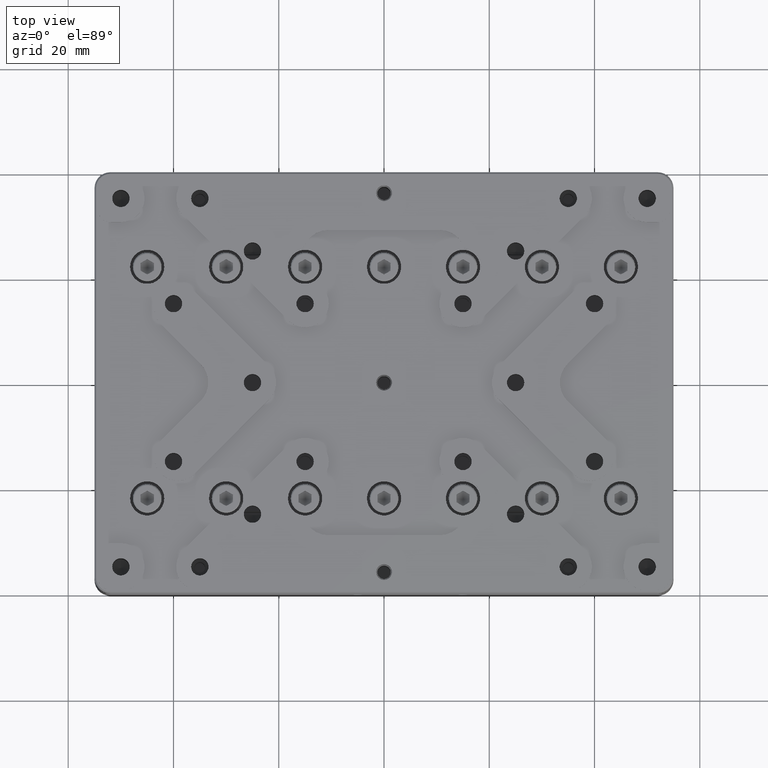
[diagram: clean part render]
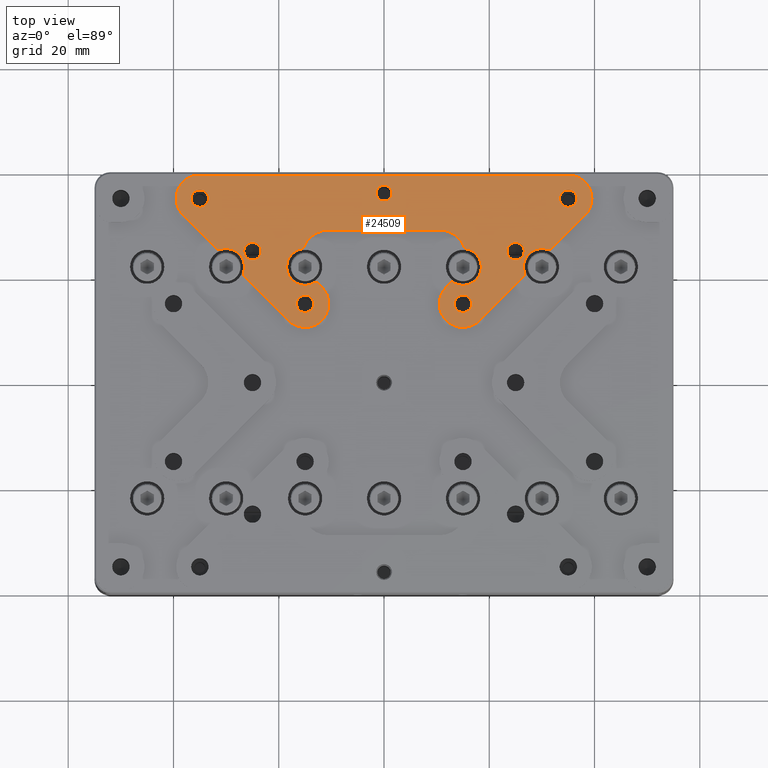
[diagram: same view with one face highlighted and labeled with its STEP entity id]
A machine part, top view. The second image highlights one B-rep face of the part: STEP entity #24509.
In plain terms, the highlighted planar face has unit normal (0, 0, 1).
Its self-contained STEP definition (entity closure, byte-faithful):
#166 = CARTESIAN_POINT ( 'NONE',  ( -12.57047696938739989, 18.93443800006765088, 13.50000000000000000 ) ) ;
#336 = FACE_OUTER_BOUND ( 'NONE', #35296, .T. ) ;
#342 = CARTESIAN_POINT ( 'NONE',  ( 15.00000000000000000, 22.00000000000000000, 13.50000000000000000 ) ) ;
#382 = AXIS2_PLACEMENT_3D ( 'NONE', #6659, #20252, #28672 ) ;
#840 = ORIENTED_EDGE ( 'NONE', *, *, #8142, .T. ) ;
#968 = CIRCLE ( 'NONE', #13509, 1.649999999999998579 ) ;
#1042 = EDGE_CURVE ( 'NONE', #34941, #3369, #7254, .T. ) ;
#1049 = AXIS2_PLACEMENT_3D ( 'NONE', #28855, #12694, #23642 ) ;
#1058 = ORIENTED_EDGE ( 'NONE', *, *, #21922, .T. ) ;
#1080 = CARTESIAN_POINT ( 'NONE',  ( -35.00000000000000000, 35.00000000000000000, 13.50000000000000000 ) ) ;
#1099 = VERTEX_POINT ( 'NONE', #33451 ) ;
#1155 = CIRCLE ( 'NONE', #10303, 4.500000000000000888 ) ;
#1201 = VECTOR ( 'NONE', #16052, 1000.000000000000114 ) ;
#1359 = EDGE_CURVE ( 'NONE', #20907, #16678, #15699, .T. ) ;
#1429 = DIRECTION ( 'NONE',  ( 0.000000000000000000, 0.000000000000000000, -1.000000000000000000 ) ) ;
#1456 = VERTEX_POINT ( 'NONE', #19811 ) ;
#1694 = CARTESIAN_POINT ( 'NONE',  ( -31.75635752696249980, 25.39239649628249751, 13.50000000000000000 ) ) ;
#1890 = AXIS2_PLACEMENT_3D ( 'NONE', #26586, #23905, #26762 ) ;
#1895 = AXIS2_PLACEMENT_3D ( 'NONE', #33715, #17055, #9186 ) ;
#1949 = ORIENTED_EDGE ( 'NONE', *, *, #18852, .F. ) ;
#1990 = EDGE_CURVE ( 'NONE', #14314, #24974, #34132, .T. ) ;
#2098 = CARTESIAN_POINT ( 'NONE',  ( -26.25405011312000170, 20.59719586362999877, 13.50000000000000000 ) ) ;
#2122 = DIRECTION ( 'NONE',  ( -0.7071067811865975328, -0.7071067811864976127, 0.000000000000000000 ) ) ;
#2176 = DIRECTION ( 'NONE',  ( 0.000000000000000000, 0.000000000000000000, -1.000000000000000000 ) ) ;
#2193 = CIRCLE ( 'NONE', #22195, 4.499999999999997335 ) ;
#2296 = DIRECTION ( 'NONE',  ( 1.000000000000000000, 0.000000000000000000, 0.000000000000000000 ) ) ;
#2425 = ORIENTED_EDGE ( 'NONE', *, *, #21699, .F. ) ;
#2464 = LINE ( 'NONE', #26635, #10680 ) ;
#3198 = ORIENTED_EDGE ( 'NONE', *, *, #22252, .T. ) ;
#3311 = VERTEX_POINT ( 'NONE', #31055 ) ;
#3364 = LINE ( 'NONE', #27700, #11066 ) ;
#3369 = VERTEX_POINT ( 'NONE', #23518 ) ;
#3392 = VECTOR ( 'NONE', #20904, 1000.000000000000114 ) ;
#3403 = CARTESIAN_POINT ( 'NONE',  ( -55.00000000000000000, 40.00000000000000000, 13.50000000000000000 ) ) ;
#3463 = VERTEX_POINT ( 'NONE', #1694 ) ;
#3527 = DIRECTION ( 'NONE',  ( 1.000000000000000000, 0.000000000000000000, 0.000000000000000000 ) ) ;
#3646 = CARTESIAN_POINT ( 'NONE',  ( 13.35000000000000142, 15.00000000000000000, 13.50000000000000000 ) ) ;
#3824 = DIRECTION ( 'NONE',  ( 1.000000000000000000, 0.000000000000000000, 0.000000000000000000 ) ) ;
#3877 = EDGE_CURVE ( 'NONE', #34908, #22116, #16713, .T. ) ;
#3968 = CARTESIAN_POINT ( 'NONE',  ( -31.22745361932149777, 25.27770615101890073, 13.50000000000000000 ) ) ;
#3972 = VECTOR ( 'NONE', #18532, 1000.000000000000114 ) ;
#3983 = EDGE_CURVE ( 'NONE', #4552, #9235, #11595, .T. ) ;
#4155 = AXIS2_PLACEMENT_3D ( 'NONE', #31248, #6716, #28917 ) ;
#4166 = CIRCLE ( 'NONE', #17285, 1.649999999999998579 ) ;
#4552 = VERTEX_POINT ( 'NONE', #34695 ) ;
#4687 = LINE ( 'NONE', #23155, #28868 ) ;
#4801 = CIRCLE ( 'NONE', #20795, 0.5000000000000004441 ) ;
#4877 = ORIENTED_EDGE ( 'NONE', *, *, #9171, .F. ) ;
#4920 = CARTESIAN_POINT ( 'NONE',  ( 35.00000000000000000, 35.00000000000000000, 13.50000000000000000 ) ) ;
#4982 = CARTESIAN_POINT ( 'NONE',  ( -10.56497115745999871, 24.00000000000000000, 13.50000000000000000 ) ) ;
#5131 = EDGE_CURVE ( 'NONE', #32268, #16678, #2193, .T. ) ;
#5158 = CARTESIAN_POINT ( 'NONE',  ( 38.18198051533999404, 31.81801948466000241, 13.50000000000000000 ) ) ;
#5205 = LINE ( 'NONE', #23857, #26019 ) ;
#5372 = AXIS2_PLACEMENT_3D ( 'NONE', #27675, #5650, #8875 ) ;
#5373 = AXIS2_PLACEMENT_3D ( 'NONE', #2098, #10322, #18365 ) ;
#5460 = DIRECTION ( 'NONE',  ( 1.000000000000000000, 0.000000000000000000, 0.000000000000000000 ) ) ;
#5482 = ORIENTED_EDGE ( 'NONE', *, *, #3983, .T. ) ;
#5568 = VERTEX_POINT ( 'NONE', #13264 ) ;
#5571 = VERTEX_POINT ( 'NONE', #10267 ) ;
#5650 = DIRECTION ( 'NONE',  ( 0.000000000000000000, 0.000000000000000000, -1.000000000000000000 ) ) ;
#5909 = ORIENTED_EDGE ( 'NONE', *, *, #34990, .T. ) ;
#5934 = CIRCLE ( 'NONE', #28839, 0.5000000000000004441 ) ;
#6081 = CARTESIAN_POINT ( 'NONE',  ( -26.60760350371664984, 20.24364247303834929, 13.50000000000000000 ) ) ;
#6138 = VERTEX_POINT ( 'NONE', #8535 ) ;
#6262 = FACE_BOUND ( 'NONE', #21524, .T. ) ;
#6571 = VERTEX_POINT ( 'NONE', #11348 ) ;
#6655 = CIRCLE ( 'NONE', #31839, 0.5000000000000004441 ) ;
#6659 = CARTESIAN_POINT ( 'NONE',  ( 0.000000000000000000, 36.00000000000000000, 13.50000000000000000 ) ) ;
#6716 = DIRECTION ( 'NONE',  ( 0.000000000000000000, 0.000000000000000000, -1.000000000000000000 ) ) ;
#7081 = EDGE_CURVE ( 'NONE', #17627, #24050, #32416, .T. ) ;
#7116 = ORIENTED_EDGE ( 'NONE', *, *, #26409, .T. ) ;
#7172 = AXIS2_PLACEMENT_3D ( 'NONE', #4982, #24130, #2296 ) ;
#7242 = CIRCLE ( 'NONE', #11228, 3.499999999999999556 ) ;
#7254 = CIRCLE ( 'NONE', #11788, 1.649999999999998579 ) ;
#7526 = DIRECTION ( 'NONE',  ( 0.000000000000000000, 0.000000000000000000, -1.000000000000000000 ) ) ;
#7678 = DIRECTION ( 'NONE',  ( 0.000000000000000000, 0.000000000000000000, -1.000000000000000000 ) ) ;
#7695 = VERTEX_POINT ( 'NONE', #21576 ) ;
#7747 = CARTESIAN_POINT ( 'NONE',  ( 31.40280413636999768, 25.74594988688000186, 13.50000000000000000 ) ) ;
#7994 = VERTEX_POINT ( 'NONE', #20427 ) ;
#8032 = CARTESIAN_POINT ( 'NONE',  ( -35.00000000000000000, 35.00000000000000000, 13.50000000000000000 ) ) ;
#8040 = VERTEX_POINT ( 'NONE', #30654 ) ;
#8116 = ORIENTED_EDGE ( 'NONE', *, *, #12570, .F. ) ;
#8142 = EDGE_CURVE ( 'NONE', #27574, #30787, #16447, .T. ) ;
#8143 = CARTESIAN_POINT ( 'NONE',  ( -25.00000000000000000, 25.00000000000000000, 13.50000000000000000 ) ) ;
#8349 = EDGE_CURVE ( 'NONE', #3369, #34941, #33651, .T. ) ;
#8535 = CARTESIAN_POINT ( 'NONE',  ( -38.18198051533974535, 31.81801948466030083, 13.50000000000000000 ) ) ;
#8774 = EDGE_CURVE ( 'NONE', #30546, #34743, #27701, .T. ) ;
#8875 = DIRECTION ( 'NONE',  ( 1.000000000000000000, 0.000000000000000000, 0.000000000000000000 ) ) ;
#8902 = DIRECTION ( 'NONE',  ( 0.000000000000000000, 0.000000000000000000, -1.000000000000000000 ) ) ;
#8935 = DIRECTION ( 'NONE',  ( 0.000000000000000000, 0.000000000000000000, -1.000000000000000000 ) ) ;
#8941 = FACE_BOUND ( 'NONE', #10868, .T. ) ;
#8968 = EDGE_CURVE ( 'NONE', #9599, #30626, #24078, .T. ) ;
#9148 = CIRCLE ( 'NONE', #29720, 3.499999999999999556 ) ;
#9171 = EDGE_CURVE ( 'NONE', #7994, #6571, #34264, .T. ) ;
#9186 = DIRECTION ( 'NONE',  ( 1.000000000000000000, 0.000000000000000000, 0.000000000000000000 ) ) ;
#9202 = CARTESIAN_POINT ( 'NONE',  ( -30.00000000000000000, 22.00000000000000000, 13.50000000000000000 ) ) ;
#9235 = VERTEX_POINT ( 'NONE', #9698 ) ;
#9358 = EDGE_CURVE ( 'NONE', #29867, #13191, #12542, .T. ) ;
#9435 = CARTESIAN_POINT ( 'NONE',  ( -35.00000000000000000, 35.00000000000000000, 13.50000000000000000 ) ) ;
#9454 = EDGE_CURVE ( 'NONE', #5568, #16336, #9148, .T. ) ;
#9561 = ORIENTED_EDGE ( 'NONE', *, *, #9695, .F. ) ;
#9599 = VERTEX_POINT ( 'NONE', #6081 ) ;
#9638 = CARTESIAN_POINT ( 'NONE',  ( -26.75405011312000170, 20.59719586362999877, 13.50000000000000000 ) ) ;
#9695 = EDGE_CURVE ( 'NONE', #28024, #32268, #15522, .T. ) ;
#9698 = CARTESIAN_POINT ( 'NONE',  ( -26.64999999999999858, 25.00000000000000000, 13.50000000000000000 ) ) ;
#9742 = VERTEX_POINT ( 'NONE', #21253 ) ;
#9876 = DIRECTION ( 'NONE',  ( -1.000000000000000000, 0.000000000000000000, 0.000000000000000000 ) ) ;
#9981 = CARTESIAN_POINT ( 'NONE',  ( -12.92403035997999972, 18.58088460947000087, 13.50000000000000000 ) ) ;
#10103 = EDGE_CURVE ( 'NONE', #3311, #1099, #26457, .T. ) ;
#10125 = CARTESIAN_POINT ( 'NONE',  ( -10.56497115745999871, 29.00000000000000000, 13.50000000000000000 ) ) ;
#10162 = ORIENTED_EDGE ( 'NONE', *, *, #27844, .F. ) ;
#10267 = CARTESIAN_POINT ( 'NONE',  ( -18.50000000000000000, 22.00000000000000000, 13.50000000000000000 ) ) ;
#10303 = AXIS2_PLACEMENT_3D ( 'NONE', #29864, #10533, #16238 ) ;
#10322 = DIRECTION ( 'NONE',  ( 0.000000000000000000, 0.000000000000000000, -1.000000000000000000 ) ) ;
#10533 = DIRECTION ( 'NONE',  ( 0.000000000000000000, 0.000000000000000000, -1.000000000000000000 ) ) ;
#10591 = DIRECTION ( 'NONE',  ( 1.000000000000000000, 0.000000000000000000, 0.000000000000000000 ) ) ;
#10602 = FACE_BOUND ( 'NONE', #21665, .T. ) ;
#10680 = VECTOR ( 'NONE', #2122, 1000.000000000000114 ) ;
#10790 = CARTESIAN_POINT ( 'NONE',  ( -15.71299288708999775, 25.93594221793999921, 13.50000000000000000 ) ) ;
#10868 = EDGE_LOOP ( 'NONE', ( #24794, #14494 ) ) ;
#10904 = CARTESIAN_POINT ( 'NONE',  ( 31.22745361932149777, 25.27770615101890073, 13.50000000000000000 ) ) ;
#11066 = VECTOR ( 'NONE', #21959, 1000.000000000000114 ) ;
#11218 = ORIENTED_EDGE ( 'NONE', *, *, #9358, .T. ) ;
#11228 = AXIS2_PLACEMENT_3D ( 'NONE', #22948, #14703, #25645 ) ;
#11279 = ORIENTED_EDGE ( 'NONE', *, *, #32839, .F. ) ;
#11348 = CARTESIAN_POINT ( 'NONE',  ( 26.75405011312000170, 20.59719586362999877, 13.50000000000000000 ) ) ;
#11386 = ORIENTED_EDGE ( 'NONE', *, *, #8349, .T. ) ;
#11595 = CIRCLE ( 'NONE', #16152, 1.649999999999998579 ) ;
#11674 = ORIENTED_EDGE ( 'NONE', *, *, #33685, .T. ) ;
#11723 = CIRCLE ( 'NONE', #31749, 1.649999999999998579 ) ;
#11786 = ORIENTED_EDGE ( 'NONE', *, *, #12813, .F. ) ;
#11788 = AXIS2_PLACEMENT_3D ( 'NONE', #27738, #8935, #19478 ) ;
#11913 = ORIENTED_EDGE ( 'NONE', *, *, #35143, .T. ) ;
#12015 = CARTESIAN_POINT ( 'NONE',  ( -10.50000000000000000, 15.00000000000000000, 13.50000000000000000 ) ) ;
#12135 = DIRECTION ( 'NONE',  ( 0.000000000000000000, 0.000000000000000000, -1.000000000000000000 ) ) ;
#12542 = CIRCLE ( 'NONE', #26285, 1.650000000000000355 ) ;
#12543 = CARTESIAN_POINT ( 'NONE',  ( 30.00000000000000000, 22.00000000000000000, 13.50000000000000000 ) ) ;
#12570 = EDGE_CURVE ( 'NONE', #20907, #22116, #6655, .T. ) ;
#12655 = DIRECTION ( 'NONE',  ( 0.000000000000000000, 0.000000000000000000, -1.000000000000000000 ) ) ;
#12694 = DIRECTION ( 'NONE',  ( 0.000000000000000000, 0.000000000000000000, -1.000000000000000000 ) ) ;
#12813 = EDGE_CURVE ( 'NONE', #29158, #20479, #27273, .T. ) ;
#13016 = EDGE_CURVE ( 'NONE', #16336, #16679, #2464, .T. ) ;
#13091 = EDGE_LOOP ( 'NONE', ( #18939, #33984 ) ) ;
#13102 = AXIS2_PLACEMENT_3D ( 'NONE', #19576, #31523, #14019 ) ;
#13191 = VERTEX_POINT ( 'NONE', #19991 ) ;
#13264 = CARTESIAN_POINT ( 'NONE',  ( 15.33983648938515110, 25.48346252462929939, 13.50000000000000000 ) ) ;
#13509 = AXIS2_PLACEMENT_3D ( 'NONE', #33668, #31159, #25428 ) ;
#13536 = CARTESIAN_POINT ( 'NONE',  ( 38.18198051533999404, 31.81801948466000241, 13.50000000000000000 ) ) ;
#13610 = CARTESIAN_POINT ( 'NONE',  ( 10.56497115745999871, 24.00000000000000000, 13.50000000000000000 ) ) ;
#13676 = DIRECTION ( 'NONE',  ( 0.000000000000000000, 0.000000000000000000, -1.000000000000000000 ) ) ;
#14019 = DIRECTION ( 'NONE',  ( 1.000000000000000000, -2.775557561562888827E-14, 0.000000000000000000 ) ) ;
#14156 = VERTEX_POINT ( 'NONE', #24727 ) ;
#14198 = EDGE_CURVE ( 'NONE', #5571, #14156, #7242, .T. ) ;
#14305 = CARTESIAN_POINT ( 'NONE',  ( 39.50000000000000000, 35.00000000000000000, 13.50000000000000000 ) ) ;
#14314 = VERTEX_POINT ( 'NONE', #3968 ) ;
#14403 = VERTEX_POINT ( 'NONE', #23648 ) ;
#14469 = FACE_BOUND ( 'NONE', #13091, .T. ) ;
#14494 = ORIENTED_EDGE ( 'NONE', *, *, #7081, .T. ) ;
#14665 = DIRECTION ( 'NONE',  ( 1.000000000000000000, 0.000000000000000000, 0.000000000000000000 ) ) ;
#14703 = DIRECTION ( 'NONE',  ( 0.000000000000000000, 0.000000000000000000, -1.000000000000000000 ) ) ;
#14776 = ORIENTED_EDGE ( 'NONE', *, *, #1042, .T. ) ;
#14800 = ORIENTED_EDGE ( 'NONE', *, *, #14198, .T. ) ;
#14888 = CARTESIAN_POINT ( 'NONE',  ( -15.00000000000000000, 15.00000000000000000, 13.50000000000000000 ) ) ;
#15070 = DIRECTION ( 'NONE',  ( -1.000000000000000000, 0.000000000000000000, 0.000000000000000000 ) ) ;
#15237 = DIRECTION ( 'NONE',  ( 1.000000000000000000, 0.000000000000000000, 0.000000000000000000 ) ) ;
#15522 = CIRCLE ( 'NONE', #34981, 4.499999999999997335 ) ;
#15699 = LINE ( 'NONE', #13536, #3392 ) ;
#15839 = CARTESIAN_POINT ( 'NONE',  ( -18.18198051534000115, 11.81801948466000063, 13.50000000000000000 ) ) ;
#15852 = ORIENTED_EDGE ( 'NONE', *, *, #1990, .T. ) ;
#16052 = DIRECTION ( 'NONE',  ( 0.7071067811865474617, 0.7071067811865474617, 0.000000000000000000 ) ) ;
#16152 = AXIS2_PLACEMENT_3D ( 'NONE', #17020, #33850, #25447 ) ;
#16223 = CIRCLE ( 'NONE', #5373, 0.5000000000000004441 ) ;
#16238 = DIRECTION ( 'NONE',  ( 1.000000000000000000, 7.709882115452474222E-16, 0.000000000000000000 ) ) ;
#16336 = VERTEX_POINT ( 'NONE', #22414 ) ;
#16339 = CARTESIAN_POINT ( 'NONE',  ( 10.56497115745999871, 29.00000000000000000, 13.50000000000000000 ) ) ;
#16403 = DIRECTION ( 'NONE',  ( 0.000000000000000000, 0.000000000000000000, -1.000000000000000000 ) ) ;
#16447 = CIRCLE ( 'NONE', #1049, 1.649999999999998579 ) ;
#16542 = DIRECTION ( 'NONE',  ( 1.000000000000000000, 0.000000000000000000, 0.000000000000000000 ) ) ;
#16676 = VERTEX_POINT ( 'NONE', #166 ) ;
#16678 = VERTEX_POINT ( 'NONE', #24532 ) ;
#16679 = VERTEX_POINT ( 'NONE', #30271 ) ;
#16713 = CIRCLE ( 'NONE', #28775, 3.499999999999999556 ) ;
#16771 = ORIENTED_EDGE ( 'NONE', *, *, #24780, .F. ) ;
#16820 = EDGE_CURVE ( 'NONE', #1099, #3311, #32455, .T. ) ;
#16861 = CIRCLE ( 'NONE', #7172, 5.000000000000000000 ) ;
#16874 = CARTESIAN_POINT ( 'NONE',  ( 23.34999999999999787, 25.00000000000000000, 13.50000000000000000 ) ) ;
#16988 = FACE_BOUND ( 'NONE', #27966, .T. ) ;
#16996 = CARTESIAN_POINT ( 'NONE',  ( 31.75635752696164715, 25.39239649628335016, 13.50000000000000000 ) ) ;
#17004 = CARTESIAN_POINT ( 'NONE',  ( 16.65000000000000213, 15.00000000000000000, 13.50000000000000000 ) ) ;
#17020 = CARTESIAN_POINT ( 'NONE',  ( -25.00000000000000000, 25.00000000000000000, 13.50000000000000000 ) ) ;
#17055 = DIRECTION ( 'NONE',  ( 0.000000000000000000, 0.000000000000000000, -1.000000000000000000 ) ) ;
#17285 = AXIS2_PLACEMENT_3D ( 'NONE', #30046, #7678, #18585 ) ;
#17306 = EDGE_CURVE ( 'NONE', #7994, #34908, #17870, .T. ) ;
#17416 = CARTESIAN_POINT ( 'NONE',  ( 26.50000000000000000, 22.00000000000000000, 13.50000000000000000 ) ) ;
#17617 = DIRECTION ( 'NONE',  ( -1.000000000000000000, 0.000000000000000000, 0.000000000000000000 ) ) ;
#17627 = VERTEX_POINT ( 'NONE', #31540 ) ;
#17667 = VECTOR ( 'NONE', #25016, 1000.000000000000000 ) ;
#17680 = CARTESIAN_POINT ( 'NONE',  ( -16.65000000000000213, 15.00000000000000000, 13.50000000000000000 ) ) ;
#17870 = CIRCLE ( 'NONE', #4155, 3.499999999999999556 ) ;
#18081 = AXIS2_PLACEMENT_3D ( 'NONE', #18284, #29221, #9876 ) ;
#18263 = EDGE_CURVE ( 'NONE', #6138, #28296, #23660, .T. ) ;
#18284 = CARTESIAN_POINT ( 'NONE',  ( -15.00000000000000000, 22.00000000000000000, 13.50000000000000000 ) ) ;
#18365 = DIRECTION ( 'NONE',  ( -1.000000000000000000, 0.000000000000000000, 0.000000000000000000 ) ) ;
#18532 = DIRECTION ( 'NONE',  ( 0.7071067811865474617, -0.7071067811865474617, 0.000000000000000000 ) ) ;
#18585 = DIRECTION ( 'NONE',  ( 1.000000000000000000, 0.000000000000000000, 0.000000000000000000 ) ) ;
#18611 = CIRCLE ( 'NONE', #27795, 0.5000000000000004441 ) ;
#18694 = EDGE_CURVE ( 'NONE', #8040, #16676, #5934, .T. ) ;
#18852 = EDGE_CURVE ( 'NONE', #14314, #3463, #32250, .T. ) ;
#18939 = ORIENTED_EDGE ( 'NONE', *, *, #10103, .T. ) ;
#19390 = EDGE_LOOP ( 'NONE', ( #5482, #7116 ) ) ;
#19478 = DIRECTION ( 'NONE',  ( 1.000000000000000000, 0.000000000000000000, 0.000000000000000000 ) ) ;
#19576 = CARTESIAN_POINT ( 'NONE',  ( 26.25405011312000170, 20.59719586362999877, 13.50000000000000000 ) ) ;
#19612 = CIRCLE ( 'NONE', #1895, 1.649999999999998579 ) ;
#19671 = FACE_BOUND ( 'NONE', #24652, .T. ) ;
#19811 = CARTESIAN_POINT ( 'NONE',  ( 36.64999999999999858, 35.00000000000000000, 13.50000000000000000 ) ) ;
#19816 = CARTESIAN_POINT ( 'NONE',  ( 10.56497115745999871, 29.00000000000000000, 13.50000000000000000 ) ) ;
#19883 = VERTEX_POINT ( 'NONE', #9638 ) ;
#19991 = CARTESIAN_POINT ( 'NONE',  ( -13.35000000000000142, 15.00000000000000000, 13.50000000000000000 ) ) ;
#20162 = CARTESIAN_POINT ( 'NONE',  ( -26.72229384898110283, 20.77254638067855197, 13.50000000000000000 ) ) ;
#20210 = CARTESIAN_POINT ( 'NONE',  ( 25.00000000000000000, 25.00000000000000000, 13.50000000000000000 ) ) ;
#20252 = DIRECTION ( 'NONE',  ( 0.000000000000000000, 0.000000000000000000, -1.000000000000000000 ) ) ;
#20292 = DIRECTION ( 'NONE',  ( 0.000000000000000000, 0.000000000000000000, -1.000000000000000000 ) ) ;
#20427 = CARTESIAN_POINT ( 'NONE',  ( 26.72229384897915239, 20.77254638067780235, 13.50000000000000000 ) ) ;
#20479 = VERTEX_POINT ( 'NONE', #12015 ) ;
#20795 = AXIS2_PLACEMENT_3D ( 'NONE', #27887, #16403, #30571 ) ;
#20904 = DIRECTION ( 'NONE',  ( 0.7071067811865474617, 0.7071067811865474617, 0.000000000000000000 ) ) ;
#20907 = VERTEX_POINT ( 'NONE', #16996 ) ;
#20997 = DIRECTION ( 'NONE',  ( -1.000000000000000000, 0.000000000000000000, 0.000000000000000000 ) ) ;
#21098 = DIRECTION ( 'NONE',  ( 1.000000000000000000, 0.000000000000000000, 0.000000000000000000 ) ) ;
#21187 = EDGE_CURVE ( 'NONE', #9742, #30546, #16861, .T. ) ;
#21253 = CARTESIAN_POINT ( 'NONE',  ( -15.24499091166970111, 25.75994747085234948, 13.50000000000000000 ) ) ;
#21312 = CARTESIAN_POINT ( 'NONE',  ( -15.00000000000000000, 15.00000000000000000, 13.50000000000000000 ) ) ;
#21518 = DIRECTION ( 'NONE',  ( 0.000000000000000000, 0.000000000000000000, 1.000000000000000000 ) ) ;
#21524 = EDGE_LOOP ( 'NONE', ( #840, #11674 ) ) ;
#21564 = DIRECTION ( 'NONE',  ( 1.000000000000000000, 0.000000000000000000, 0.000000000000000000 ) ) ;
#21576 = CARTESIAN_POINT ( 'NONE',  ( 33.34999999999999432, 35.00000000000000000, 13.50000000000000000 ) ) ;
#21665 = EDGE_LOOP ( 'NONE', ( #24066, #11218 ) ) ;
#21699 = EDGE_CURVE ( 'NONE', #9742, #14156, #18611, .T. ) ;
#21705 = DIRECTION ( 'NONE',  ( 0.000000000000000000, 0.000000000000000000, -1.000000000000000000 ) ) ;
#21726 = DIRECTION ( 'NONE',  ( 0.000000000000000000, 0.000000000000000000, -1.000000000000000000 ) ) ;
#21815 = DIRECTION ( 'NONE',  ( 0.000000000000000000, 0.000000000000000000, -1.000000000000000000 ) ) ;
#21922 = EDGE_CURVE ( 'NONE', #8040, #5571, #24364, .T. ) ;
#21959 = DIRECTION ( 'NONE',  ( -0.7071067811865975328, 0.7071067811864976127, 0.000000000000000000 ) ) ;
#22099 = AXIS2_PLACEMENT_3D ( 'NONE', #30795, #35131, #33646 ) ;
#22116 = VERTEX_POINT ( 'NONE', #10904 ) ;
#22195 = AXIS2_PLACEMENT_3D ( 'NONE', #4920, #21726, #21564 ) ;
#22218 = ORIENTED_EDGE ( 'NONE', *, *, #17306, .T. ) ;
#22226 = AXIS2_PLACEMENT_3D ( 'NONE', #20210, #12135, #22910 ) ;
#22252 = EDGE_CURVE ( 'NONE', #1456, #7695, #968, .T. ) ;
#22297 = ORIENTED_EDGE ( 'NONE', *, *, #5131, .F. ) ;
#22360 = FACE_BOUND ( 'NONE', #19390, .T. ) ;
#22414 = CARTESIAN_POINT ( 'NONE',  ( 12.86366343726687944, 19.22762446794634883, 13.50000000000000000 ) ) ;
#22567 = EDGE_CURVE ( 'NONE', #7695, #1456, #4166, .T. ) ;
#22910 = DIRECTION ( 'NONE',  ( 1.000000000000000000, 0.000000000000000000, 0.000000000000000000 ) ) ;
#22948 = CARTESIAN_POINT ( 'NONE',  ( -15.00000000000000000, 22.00000000000000000, 13.50000000000000000 ) ) ;
#22963 = EDGE_CURVE ( 'NONE', #6571, #14403, #25919, .T. ) ;
#23155 = CARTESIAN_POINT ( 'NONE',  ( -54.39999999999999858, 39.39999999999999858, 13.50000000000000000 ) ) ;
#23275 = AXIS2_PLACEMENT_3D ( 'NONE', #9202, #20292, #17617 ) ;
#23296 = ORIENTED_EDGE ( 'NONE', *, *, #21187, .T. ) ;
#23518 = CARTESIAN_POINT ( 'NONE',  ( 26.64999999999999858, 25.00000000000000000, 13.50000000000000000 ) ) ;
#23562 = AXIS2_PLACEMENT_3D ( 'NONE', #21312, #34579, #15237 ) ;
#23609 = CIRCLE ( 'NONE', #27025, 4.500000000000000888 ) ;
#23642 = DIRECTION ( 'NONE',  ( 1.000000000000000000, 0.000000000000000000, 0.000000000000000000 ) ) ;
#23648 = CARTESIAN_POINT ( 'NONE',  ( 26.60760350371749894, 20.24364247303750020, 13.50000000000000000 ) ) ;
#23660 = CIRCLE ( 'NONE', #29402, 4.500000000000000888 ) ;
#23759 = DIRECTION ( 'NONE',  ( 0.000000000000000000, 0.000000000000000000, -1.000000000000000000 ) ) ;
#23857 = CARTESIAN_POINT ( 'NONE',  ( -18.18198051534000115, 11.81801948466000063, 13.50000000000000000 ) ) ;
#23905 = DIRECTION ( 'NONE',  ( 0.000000000000000000, 0.000000000000000000, -1.000000000000000000 ) ) ;
#24050 = VERTEX_POINT ( 'NONE', #28969 ) ;
#24066 = ORIENTED_EDGE ( 'NONE', *, *, #27260, .T. ) ;
#24078 = LINE ( 'NONE', #15839, #3972 ) ;
#24130 = DIRECTION ( 'NONE',  ( 0.000000000000000000, 0.000000000000000000, -1.000000000000000000 ) ) ;
#24209 = DIRECTION ( 'NONE',  ( 0.000000000000000000, 0.000000000000000000, -1.000000000000000000 ) ) ;
#24296 = AXIS2_PLACEMENT_3D ( 'NONE', #13610, #24549, #10591 ) ;
#24324 = DIRECTION ( 'NONE',  ( 0.000000000000000000, 0.000000000000000000, -1.000000000000000000 ) ) ;
#24364 = CIRCLE ( 'NONE', #18081, 3.499999999999999556 ) ;
#24509 = ADVANCED_FACE ( 'NONE', ( #336, #8941, #14469, #16988, #22360, #19671, #10602, #6262 ), #28099, .T. ) ;
#24532 = CARTESIAN_POINT ( 'NONE',  ( 38.18198051533999404, 31.81801948466000241, 13.50000000000000000 ) ) ;
#24549 = DIRECTION ( 'NONE',  ( 0.000000000000000000, 0.000000000000000000, -1.000000000000000000 ) ) ;
#24652 = EDGE_LOOP ( 'NONE', ( #11386, #14776 ) ) ;
#24697 = CIRCLE ( 'NONE', #23562, 1.650000000000000355 ) ;
#24727 = CARTESIAN_POINT ( 'NONE',  ( -15.62386877620170011, 25.44394944069769693, 13.50000000000000000 ) ) ;
#24780 = EDGE_CURVE ( 'NONE', #19883, #24974, #4801, .T. ) ;
#24794 = ORIENTED_EDGE ( 'NONE', *, *, #31893, .T. ) ;
#24816 = EDGE_CURVE ( 'NONE', #29158, #16676, #3364, .T. ) ;
#24974 = VERTEX_POINT ( 'NONE', #20162 ) ;
#25016 = DIRECTION ( 'NONE',  ( 1.000000000000000000, 0.000000000000000000, 0.000000000000000000 ) ) ;
#25226 = ORIENTED_EDGE ( 'NONE', *, *, #24816, .T. ) ;
#25428 = DIRECTION ( 'NONE',  ( 1.000000000000000000, 0.000000000000000000, 0.000000000000000000 ) ) ;
#25447 = DIRECTION ( 'NONE',  ( 1.000000000000000000, 0.000000000000000000, 0.000000000000000000 ) ) ;
#25645 = DIRECTION ( 'NONE',  ( -1.000000000000000000, 0.000000000000000000, 0.000000000000000000 ) ) ;
#25919 = CIRCLE ( 'NONE', #30500, 0.5000000000000004441 ) ;
#26019 = VECTOR ( 'NONE', #34778, 1000.000000000000114 ) ;
#26285 = AXIS2_PLACEMENT_3D ( 'NONE', #32061, #7526, #26685 ) ;
#26338 = DIRECTION ( 'NONE',  ( -1.000000000000000000, 0.000000000000000000, 0.000000000000000000 ) ) ;
#26409 = EDGE_CURVE ( 'NONE', #9235, #4552, #11723, .T. ) ;
#26457 = CIRCLE ( 'NONE', #33872, 1.649999999999998579 ) ;
#26586 = CARTESIAN_POINT ( 'NONE',  ( 0.000000000000000000, 36.00000000000000000, 13.50000000000000000 ) ) ;
#26635 = CARTESIAN_POINT ( 'NONE',  ( 11.81801948466000063, 18.18198051534000115, 13.50000000000000000 ) ) ;
#26685 = DIRECTION ( 'NONE',  ( 1.000000000000000000, 0.000000000000000000, 0.000000000000000000 ) ) ;
#26762 = DIRECTION ( 'NONE',  ( 1.000000000000000000, 0.000000000000000000, 0.000000000000000000 ) ) ;
#26822 = CARTESIAN_POINT ( 'NONE',  ( 35.00000000000000000, 35.00000000000000000, 13.50000000000000000 ) ) ;
#26883 = ORIENTED_EDGE ( 'NONE', *, *, #3877, .T. ) ;
#27025 = AXIS2_PLACEMENT_3D ( 'NONE', #14888, #28349, #3824 ) ;
#27133 = CARTESIAN_POINT ( 'NONE',  ( 26.25405011312000170, 20.59719586362999877, 13.50000000000000000 ) ) ;
#27260 = EDGE_CURVE ( 'NONE', #13191, #29867, #24697, .T. ) ;
#27273 = CIRCLE ( 'NONE', #22099, 4.500000000000000888 ) ;
#27311 = DIRECTION ( 'NONE',  ( 0.000000000000000000, 0.000000000000000000, -1.000000000000000000 ) ) ;
#27452 = ORIENTED_EDGE ( 'NONE', *, *, #8968, .T. ) ;
#27504 = ORIENTED_EDGE ( 'NONE', *, *, #13016, .T. ) ;
#27553 = DIRECTION ( 'NONE',  ( 1.000000000000000000, 0.000000000000000000, 0.000000000000000000 ) ) ;
#27574 = VERTEX_POINT ( 'NONE', #17004 ) ;
#27675 = CARTESIAN_POINT ( 'NONE',  ( -31.40280413636999768, 25.74594988688000186, 13.50000000000000000 ) ) ;
#27700 = CARTESIAN_POINT ( 'NONE',  ( -14.10050506339000087, 20.46446609407000139, 13.50000000000000000 ) ) ;
#27701 = LINE ( 'NONE', #19816, #17667 ) ;
#27731 = CIRCLE ( 'NONE', #24296, 5.000000000000000888 ) ;
#27738 = CARTESIAN_POINT ( 'NONE',  ( 25.00000000000000000, 25.00000000000000000, 13.50000000000000000 ) ) ;
#27795 = AXIS2_PLACEMENT_3D ( 'NONE', #10790, #21705, #32627 ) ;
#27844 = EDGE_CURVE ( 'NONE', #31110, #16679, #1155, .T. ) ;
#27887 = CARTESIAN_POINT ( 'NONE',  ( -26.25405011312000170, 20.59719586362999877, 13.50000000000000000 ) ) ;
#27894 = AXIS2_PLACEMENT_3D ( 'NONE', #1080, #1429, #14665 ) ;
#27966 = EDGE_LOOP ( 'NONE', ( #3198, #28576 ) ) ;
#28024 = VERTEX_POINT ( 'NONE', #30934 ) ;
#28099 = PLANE ( 'NONE',  #32225 ) ;
#28296 = VERTEX_POINT ( 'NONE', #29008 ) ;
#28349 = DIRECTION ( 'NONE',  ( 0.000000000000000000, 0.000000000000000000, -1.000000000000000000 ) ) ;
#28548 = EDGE_CURVE ( 'NONE', #31110, #14403, #29710, .T. ) ;
#28576 = ORIENTED_EDGE ( 'NONE', *, *, #22567, .T. ) ;
#28672 = DIRECTION ( 'NONE',  ( 1.000000000000000000, 0.000000000000000000, 0.000000000000000000 ) ) ;
#28775 = AXIS2_PLACEMENT_3D ( 'NONE', #12543, #2176, #26338 ) ;
#28839 = AXIS2_PLACEMENT_3D ( 'NONE', #9981, #23759, #35012 ) ;
#28855 = CARTESIAN_POINT ( 'NONE',  ( 15.00000000000000000, 15.00000000000000000, 13.50000000000000000 ) ) ;
#28868 = VECTOR ( 'NONE', #15070, 1000.000000000000000 ) ;
#28917 = DIRECTION ( 'NONE',  ( -1.000000000000000000, 0.000000000000000000, 0.000000000000000000 ) ) ;
#28969 = CARTESIAN_POINT ( 'NONE',  ( 1.500000000000000000, 36.00000000000000000, 13.50000000000000000 ) ) ;
#29008 = CARTESIAN_POINT ( 'NONE',  ( -35.94339811320785572, 39.39999999999999858, 13.50000000000000000 ) ) ;
#29158 = VERTEX_POINT ( 'NONE', #31385 ) ;
#29221 = DIRECTION ( 'NONE',  ( 0.000000000000000000, 0.000000000000000000, -1.000000000000000000 ) ) ;
#29371 = ORIENTED_EDGE ( 'NONE', *, *, #22963, .F. ) ;
#29402 = AXIS2_PLACEMENT_3D ( 'NONE', #8032, #24324, #34539 ) ;
#29710 = LINE ( 'NONE', #5158, #1201 ) ;
#29720 = AXIS2_PLACEMENT_3D ( 'NONE', #342, #21815, #33112 ) ;
#29864 = CARTESIAN_POINT ( 'NONE',  ( 15.00000000000000000, 15.00000000000000000, 13.50000000000000000 ) ) ;
#29867 = VERTEX_POINT ( 'NONE', #17680 ) ;
#30046 = CARTESIAN_POINT ( 'NONE',  ( 35.00000000000000000, 35.00000000000000000, 13.50000000000000000 ) ) ;
#30271 = CARTESIAN_POINT ( 'NONE',  ( 11.81801948466010188, 18.18198051534010062, 13.50000000000000000 ) ) ;
#30500 = AXIS2_PLACEMENT_3D ( 'NONE', #27133, #13676, #5460 ) ;
#30507 = CARTESIAN_POINT ( 'NONE',  ( -18.18198051534000115, 11.81801948466000063, 13.50000000000000000 ) ) ;
#30546 = VERTEX_POINT ( 'NONE', #10125 ) ;
#30571 = DIRECTION ( 'NONE',  ( -1.000000000000000000, 0.000000000000000000, 0.000000000000000000 ) ) ;
#30600 = CARTESIAN_POINT ( 'NONE',  ( 18.18198051533974891, 11.81801948466025998, 13.50000000000000000 ) ) ;
#30626 = VERTEX_POINT ( 'NONE', #30507 ) ;
#30654 = CARTESIAN_POINT ( 'NONE',  ( -13.18352656498058018, 19.00827403328700171, 13.50000000000000000 ) ) ;
#30787 = VERTEX_POINT ( 'NONE', #3646 ) ;
#30795 = CARTESIAN_POINT ( 'NONE',  ( -15.00000000000000000, 15.00000000000000000, 13.50000000000000000 ) ) ;
#30928 = ORIENTED_EDGE ( 'NONE', *, *, #18263, .F. ) ;
#30934 = CARTESIAN_POINT ( 'NONE',  ( 35.94339811320774913, 39.39999999999955094, 13.50000000000000000 ) ) ;
#31055 = CARTESIAN_POINT ( 'NONE',  ( -33.34999999999999432, 35.00000000000000000, 13.50000000000000000 ) ) ;
#31110 = VERTEX_POINT ( 'NONE', #30600 ) ;
#31159 = DIRECTION ( 'NONE',  ( 0.000000000000000000, 0.000000000000000000, -1.000000000000000000 ) ) ;
#31248 = CARTESIAN_POINT ( 'NONE',  ( 30.00000000000000000, 22.00000000000000000, 13.50000000000000000 ) ) ;
#31385 = CARTESIAN_POINT ( 'NONE',  ( -11.81801948466030083, 18.18198051533989812, 13.50000000000000000 ) ) ;
#31427 = ORIENTED_EDGE ( 'NONE', *, *, #9454, .T. ) ;
#31523 = DIRECTION ( 'NONE',  ( 0.000000000000000000, 0.000000000000000000, -1.000000000000000000 ) ) ;
#31540 = CARTESIAN_POINT ( 'NONE',  ( -1.500000000000000000, 36.00000000000000000, 13.50000000000000000 ) ) ;
#31749 = AXIS2_PLACEMENT_3D ( 'NONE', #8143, #27311, #16542 ) ;
#31839 = AXIS2_PLACEMENT_3D ( 'NONE', #7747, #24209, #20997 ) ;
#31883 = ORIENTED_EDGE ( 'NONE', *, *, #8774, .T. ) ;
#31893 = EDGE_CURVE ( 'NONE', #24050, #17627, #33334, .T. ) ;
#32061 = CARTESIAN_POINT ( 'NONE',  ( -15.00000000000000000, 15.00000000000000000, 13.50000000000000000 ) ) ;
#32225 = AXIS2_PLACEMENT_3D ( 'NONE', #3403, #21518, #27553 ) ;
#32250 = CIRCLE ( 'NONE', #5372, 0.5000000000000004441 ) ;
#32268 = VERTEX_POINT ( 'NONE', #14305 ) ;
#32416 = CIRCLE ( 'NONE', #382, 1.500000000000000000 ) ;
#32455 = CIRCLE ( 'NONE', #27894, 1.649999999999998579 ) ;
#32627 = DIRECTION ( 'NONE',  ( -1.000000000000000000, 0.000000000000000000, 0.000000000000000000 ) ) ;
#32839 = EDGE_CURVE ( 'NONE', #9599, #19883, #16223, .T. ) ;
#32855 = ORIENTED_EDGE ( 'NONE', *, *, #33780, .F. ) ;
#33112 = DIRECTION ( 'NONE',  ( -1.000000000000000000, 0.000000000000000000, 0.000000000000000000 ) ) ;
#33334 = CIRCLE ( 'NONE', #1890, 1.500000000000000000 ) ;
#33451 = CARTESIAN_POINT ( 'NONE',  ( -36.64999999999999858, 35.00000000000000000, 13.50000000000000000 ) ) ;
#33646 = DIRECTION ( 'NONE',  ( 1.000000000000000000, -1.927470528863118556E-15, 0.000000000000000000 ) ) ;
#33651 = CIRCLE ( 'NONE', #22226, 1.649999999999998579 ) ;
#33668 = CARTESIAN_POINT ( 'NONE',  ( 35.00000000000000000, 35.00000000000000000, 13.50000000000000000 ) ) ;
#33685 = EDGE_CURVE ( 'NONE', #30787, #27574, #19612, .T. ) ;
#33715 = CARTESIAN_POINT ( 'NONE',  ( 15.00000000000000000, 15.00000000000000000, 13.50000000000000000 ) ) ;
#33780 = EDGE_CURVE ( 'NONE', #20479, #30626, #23609, .T. ) ;
#33850 = DIRECTION ( 'NONE',  ( 0.000000000000000000, 0.000000000000000000, -1.000000000000000000 ) ) ;
#33872 = AXIS2_PLACEMENT_3D ( 'NONE', #9435, #8902, #3527 ) ;
#33984 = ORIENTED_EDGE ( 'NONE', *, *, #16820, .T. ) ;
#34050 = ORIENTED_EDGE ( 'NONE', *, *, #18694, .F. ) ;
#34132 = CIRCLE ( 'NONE', #23275, 3.500000000000003109 ) ;
#34264 = CIRCLE ( 'NONE', #13102, 0.5000000000000004441 ) ;
#34539 = DIRECTION ( 'NONE',  ( 1.000000000000000000, 0.000000000000000000, 0.000000000000000000 ) ) ;
#34579 = DIRECTION ( 'NONE',  ( 0.000000000000000000, 0.000000000000000000, -1.000000000000000000 ) ) ;
#34695 = CARTESIAN_POINT ( 'NONE',  ( -23.34999999999999787, 25.00000000000000000, 13.50000000000000000 ) ) ;
#34743 = VERTEX_POINT ( 'NONE', #16339 ) ;
#34778 = DIRECTION ( 'NONE',  ( 0.7071067811865474617, -0.7071067811865474617, 0.000000000000000000 ) ) ;
#34908 = VERTEX_POINT ( 'NONE', #17416 ) ;
#34941 = VERTEX_POINT ( 'NONE', #16874 ) ;
#34981 = AXIS2_PLACEMENT_3D ( 'NONE', #26822, #12655, #21098 ) ;
#34990 = EDGE_CURVE ( 'NONE', #28024, #28296, #4687, .T. ) ;
#35012 = DIRECTION ( 'NONE',  ( 1.000000000000000000, 6.938893903907222067E-15, 0.000000000000000000 ) ) ;
#35043 = ORIENTED_EDGE ( 'NONE', *, *, #28548, .T. ) ;
#35048 = ORIENTED_EDGE ( 'NONE', *, *, #35218, .T. ) ;
#35131 = DIRECTION ( 'NONE',  ( 0.000000000000000000, 0.000000000000000000, -1.000000000000000000 ) ) ;
#35143 = EDGE_CURVE ( 'NONE', #6138, #3463, #5205, .T. ) ;
#35192 = ORIENTED_EDGE ( 'NONE', *, *, #1359, .T. ) ;
#35218 = EDGE_CURVE ( 'NONE', #34743, #5568, #27731, .T. ) ;
#35296 = EDGE_LOOP ( 'NONE', ( #11913, #1949, #15852, #16771, #11279, #27452, #32855, #11786, #25226, #34050, #1058, #14800, #2425, #23296, #31883, #35048, #31427, #27504, #10162, #35043, #29371, #4877, #22218, #26883, #8116, #35192, #22297, #9561, #5909, #30928 ) ) ;